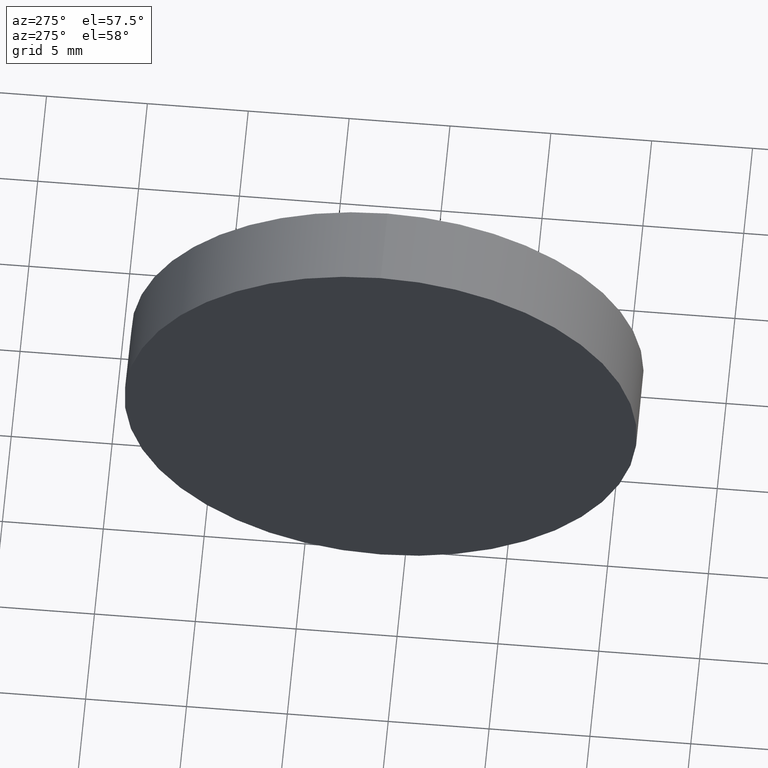
[diagram: clean part render]
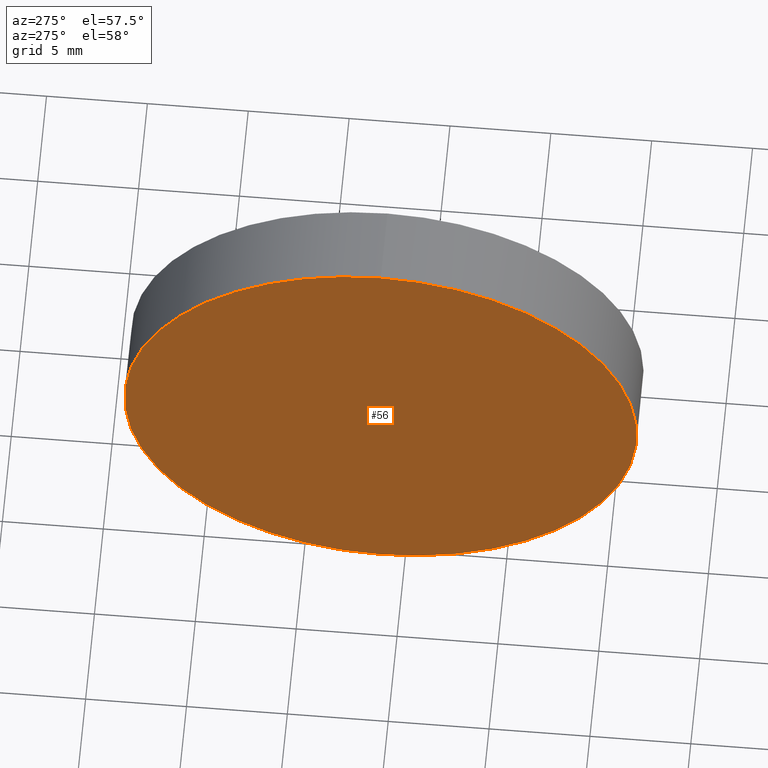
[diagram: same view with one face highlighted and labeled with its STEP entity id]
A machine part, auxiliary view. The second image highlights one B-rep face of the part: STEP entity #56.
In plain terms, the highlighted planar face has unit normal (1, 0, 0).
Its self-contained STEP definition (entity closure, byte-faithful):
#10 = EDGE_CURVE ( 'NONE', #146, #176, #12, .T. ) ;
#11 = DIRECTION ( 'NONE',  ( 0.0000000000000000000, 0.0000000000000000000, -1.000000000000000000 ) ) ;
#12 = CIRCLE ( 'NONE', #46, 12.70000000000000300 ) ;
#17 = CIRCLE ( 'NONE', #58, 12.70000000000000300 ) ;
#19 = FACE_OUTER_BOUND ( 'NONE', #132, .T. ) ;
#21 = DIRECTION ( 'NONE',  ( -1.000000000000000000, -0.0000000000000000000, -0.0000000000000000000 ) ) ;
#23 = DIRECTION ( 'NONE',  ( 0.0000000000000000000, 0.0000000000000000000, 1.000000000000000000 ) ) ;
#34 = CARTESIAN_POINT ( 'NONE',  ( 119.3629307920347200, 71.19398908659370300, 0.0000000000000000000 ) ) ;
#46 = AXIS2_PLACEMENT_3D ( 'NONE', #127, #21, #178 ) ;
#47 = ORIENTED_EDGE ( 'NONE', *, *, #10, .T. ) ;
#56 = ADVANCED_FACE ( 'NONE', ( #19 ), #152, .F. ) ;
#58 = AXIS2_PLACEMENT_3D ( 'NONE', #34, #109, #23 ) ;
#59 = EDGE_CURVE ( 'NONE', #176, #146, #17, .T. ) ;
#60 = DIRECTION ( 'NONE',  ( 1.000000000000000000, 0.0000000000000000000, 0.0000000000000000000 ) ) ;
#64 = AXIS2_PLACEMENT_3D ( 'NONE', #92, #60, #11 ) ;
#75 = CARTESIAN_POINT ( 'NONE',  ( 119.3629307920347200, 71.19398908659370300, -12.70000000000000100 ) ) ;
#92 = CARTESIAN_POINT ( 'NONE',  ( 119.3629307920347200, 71.19398908659370300, 0.0000000000000000000 ) ) ;
#96 = CARTESIAN_POINT ( 'NONE',  ( 119.3629307920347200, 71.19398908659370300, 12.70000000000000300 ) ) ;
#109 = DIRECTION ( 'NONE',  ( -1.000000000000000000, -0.0000000000000000000, -0.0000000000000000000 ) ) ;
#116 = ORIENTED_EDGE ( 'NONE', *, *, #59, .T. ) ;
#127 = CARTESIAN_POINT ( 'NONE',  ( 119.3629307920347200, 71.19398908659370300, 0.0000000000000000000 ) ) ;
#132 = EDGE_LOOP ( 'NONE', ( #116, #47 ) ) ;
#146 = VERTEX_POINT ( 'NONE', #75 ) ;
#152 = PLANE ( 'NONE',  #64 ) ;
#176 = VERTEX_POINT ( 'NONE', #96 ) ;
#178 = DIRECTION ( 'NONE',  ( 0.0000000000000000000, 0.0000000000000000000, 1.000000000000000000 ) ) ;